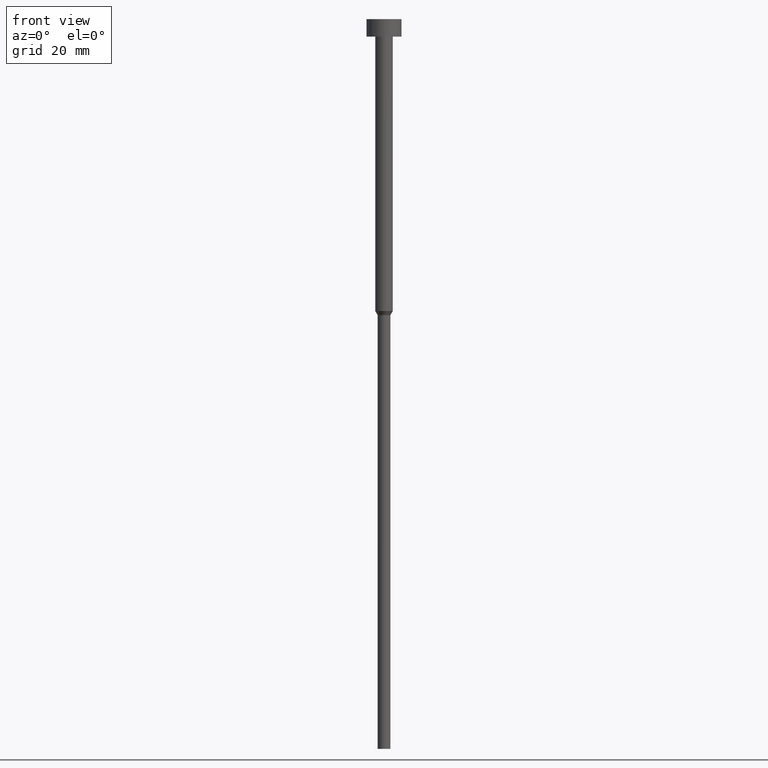
[diagram: clean part render]
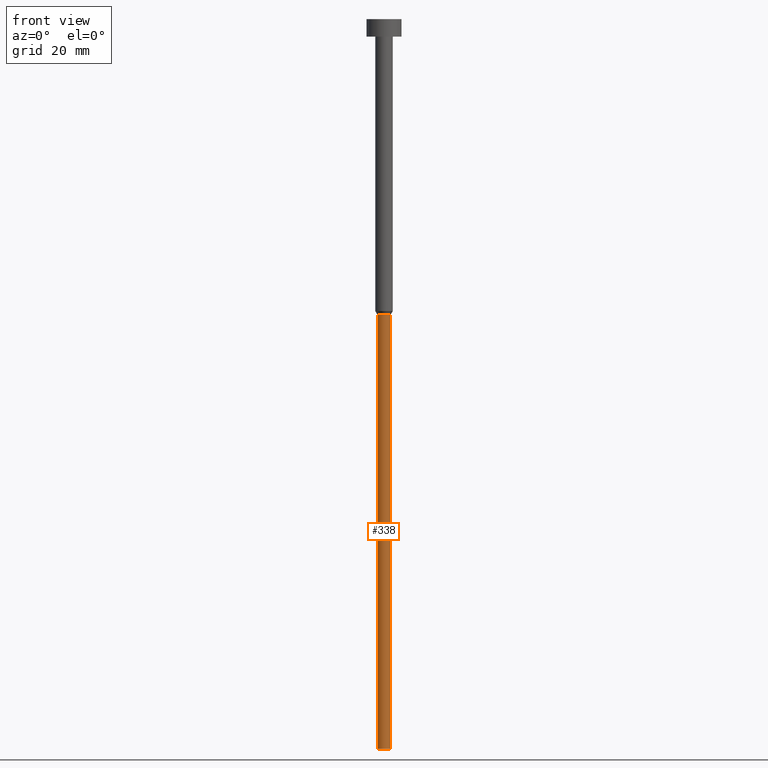
[diagram: same view with one face highlighted and labeled with its STEP entity id]
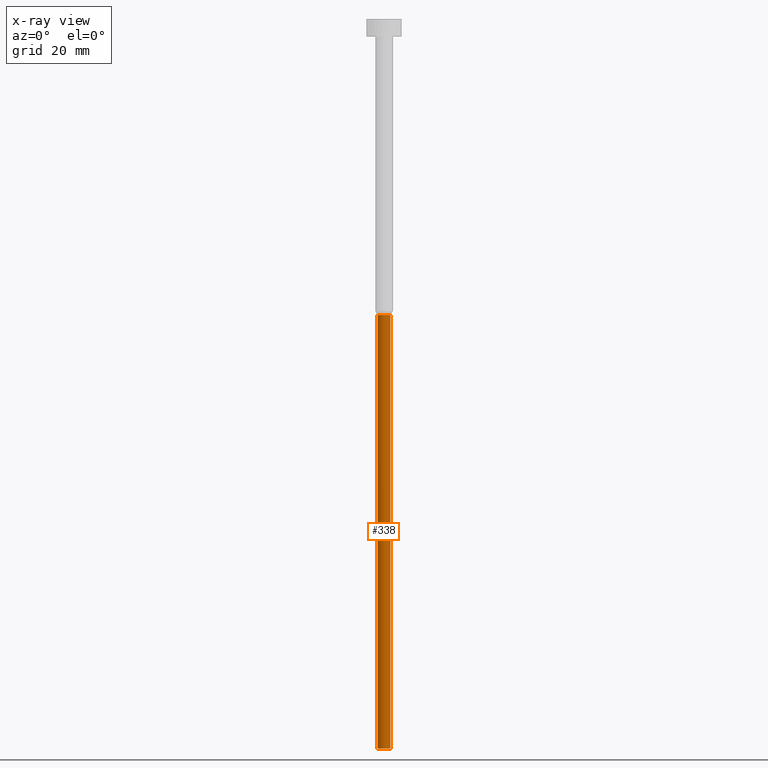
[diagram: x-ray of the same camera — body ghosted, the highlighted face saturated]
A machine part, front view. The second image highlights one B-rep face of the part: STEP entity #338.
The next image is the same camera in x-ray: the body ghosted, the highlighted face saturated — about 0% of this face is hidden behind the body in this view.
In plain terms, the highlighted cylindrical surface (edge-blend (fillet) strip) has radius 1.1 mm, axis along (-0, -0, 1).
Its self-contained STEP definition (entity closure, byte-faithful):
#1 = CARTESIAN_POINT ( 'NONE',  ( 1.100000000000000089, 0.000000000000000000, -50.69282032302754715 ) ) ;
#5 = ORIENTED_EDGE ( 'NONE', *, *, #101, .F. ) ;
#9 = LINE ( 'NONE', #37, #30 ) ;
#11 = DIRECTION ( 'NONE',  ( -0.000000000000000000, -0.000000000000000000, 1.000000000000000000 ) ) ;
#17 = DIRECTION ( 'NONE',  ( 1.000000000000000000, 0.000000000000000000, 0.000000000000000000 ) ) ;
#29 = ORIENTED_EDGE ( 'NONE', *, *, #196, .T. ) ;
#30 = VECTOR ( 'NONE', #300, 1000.000000000000000 ) ;
#35 = EDGE_LOOP ( 'NONE', ( #202, #29, #324, #5 ) ) ;
#37 = CARTESIAN_POINT ( 'NONE',  ( -1.100000000000000089, 1.347111479062088503E-16, 0.000000000000000000 ) ) ;
#70 = VERTEX_POINT ( 'NONE', #1 ) ;
#84 = VERTEX_POINT ( 'NONE', #217 ) ;
#85 = CIRCLE ( 'NONE', #166, 1.100000000000000089 ) ;
#90 = CARTESIAN_POINT ( 'NONE',  ( 0.000000000000000000, 0.000000000000000000, -125.0000000000000000 ) ) ;
#95 = DIRECTION ( 'NONE',  ( -0.000000000000000000, -0.000000000000000000, 1.000000000000000000 ) ) ;
#101 = EDGE_CURVE ( 'NONE', #236, #70, #163, .T. ) ;
#110 = CARTESIAN_POINT ( 'NONE',  ( -1.100000000000000089, 1.347111479062088503E-16, -50.69282032302754715 ) ) ;
#126 = AXIS2_PLACEMENT_3D ( 'NONE', #297, #95, #244 ) ;
#148 = AXIS2_PLACEMENT_3D ( 'NONE', #307, #336, #312 ) ;
#163 = CIRCLE ( 'NONE', #126, 1.100000000000000089 ) ;
#166 = AXIS2_PLACEMENT_3D ( 'NONE', #90, #11, #17 ) ;
#190 = CYLINDRICAL_SURFACE ( 'NONE', #148, 1.100000000000000089 ) ;
#196 = EDGE_CURVE ( 'NONE', #261, #84, #85, .T. ) ;
#202 = ORIENTED_EDGE ( 'NONE', *, *, #216, .F. ) ;
#206 = LINE ( 'NONE', #342, #341 ) ;
#216 = EDGE_CURVE ( 'NONE', #261, #236, #9, .T. ) ;
#217 = CARTESIAN_POINT ( 'NONE',  ( 1.100000000000000089, 0.000000000000000000, -125.0000000000000000 ) ) ;
#236 = VERTEX_POINT ( 'NONE', #110 ) ;
#244 = DIRECTION ( 'NONE',  ( 1.000000000000000000, 0.000000000000000000, 0.000000000000000000 ) ) ;
#261 = VERTEX_POINT ( 'NONE', #327 ) ;
#278 = FACE_OUTER_BOUND ( 'NONE', #35, .T. ) ;
#281 = EDGE_CURVE ( 'NONE', #84, #70, #206, .T. ) ;
#297 = CARTESIAN_POINT ( 'NONE',  ( 0.000000000000000000, 0.000000000000000000, -50.69282032302754715 ) ) ;
#300 = DIRECTION ( 'NONE',  ( -0.000000000000000000, -0.000000000000000000, 1.000000000000000000 ) ) ;
#307 = CARTESIAN_POINT ( 'NONE',  ( 0.000000000000000000, 0.000000000000000000, 0.000000000000000000 ) ) ;
#312 = DIRECTION ( 'NONE',  ( 1.000000000000000000, 0.000000000000000000, 0.000000000000000000 ) ) ;
#322 = DIRECTION ( 'NONE',  ( -0.000000000000000000, -0.000000000000000000, 1.000000000000000000 ) ) ;
#324 = ORIENTED_EDGE ( 'NONE', *, *, #281, .T. ) ;
#327 = CARTESIAN_POINT ( 'NONE',  ( -1.100000000000000089, 1.347111479062088503E-16, -125.0000000000000000 ) ) ;
#336 = DIRECTION ( 'NONE',  ( -0.000000000000000000, -0.000000000000000000, 1.000000000000000000 ) ) ;
#338 = ADVANCED_FACE ( 'NONE', ( #278 ), #190, .T. ) ;
#341 = VECTOR ( 'NONE', #322, 1000.000000000000000 ) ;
#342 = CARTESIAN_POINT ( 'NONE',  ( 1.100000000000000089, 0.000000000000000000, 0.000000000000000000 ) ) ;